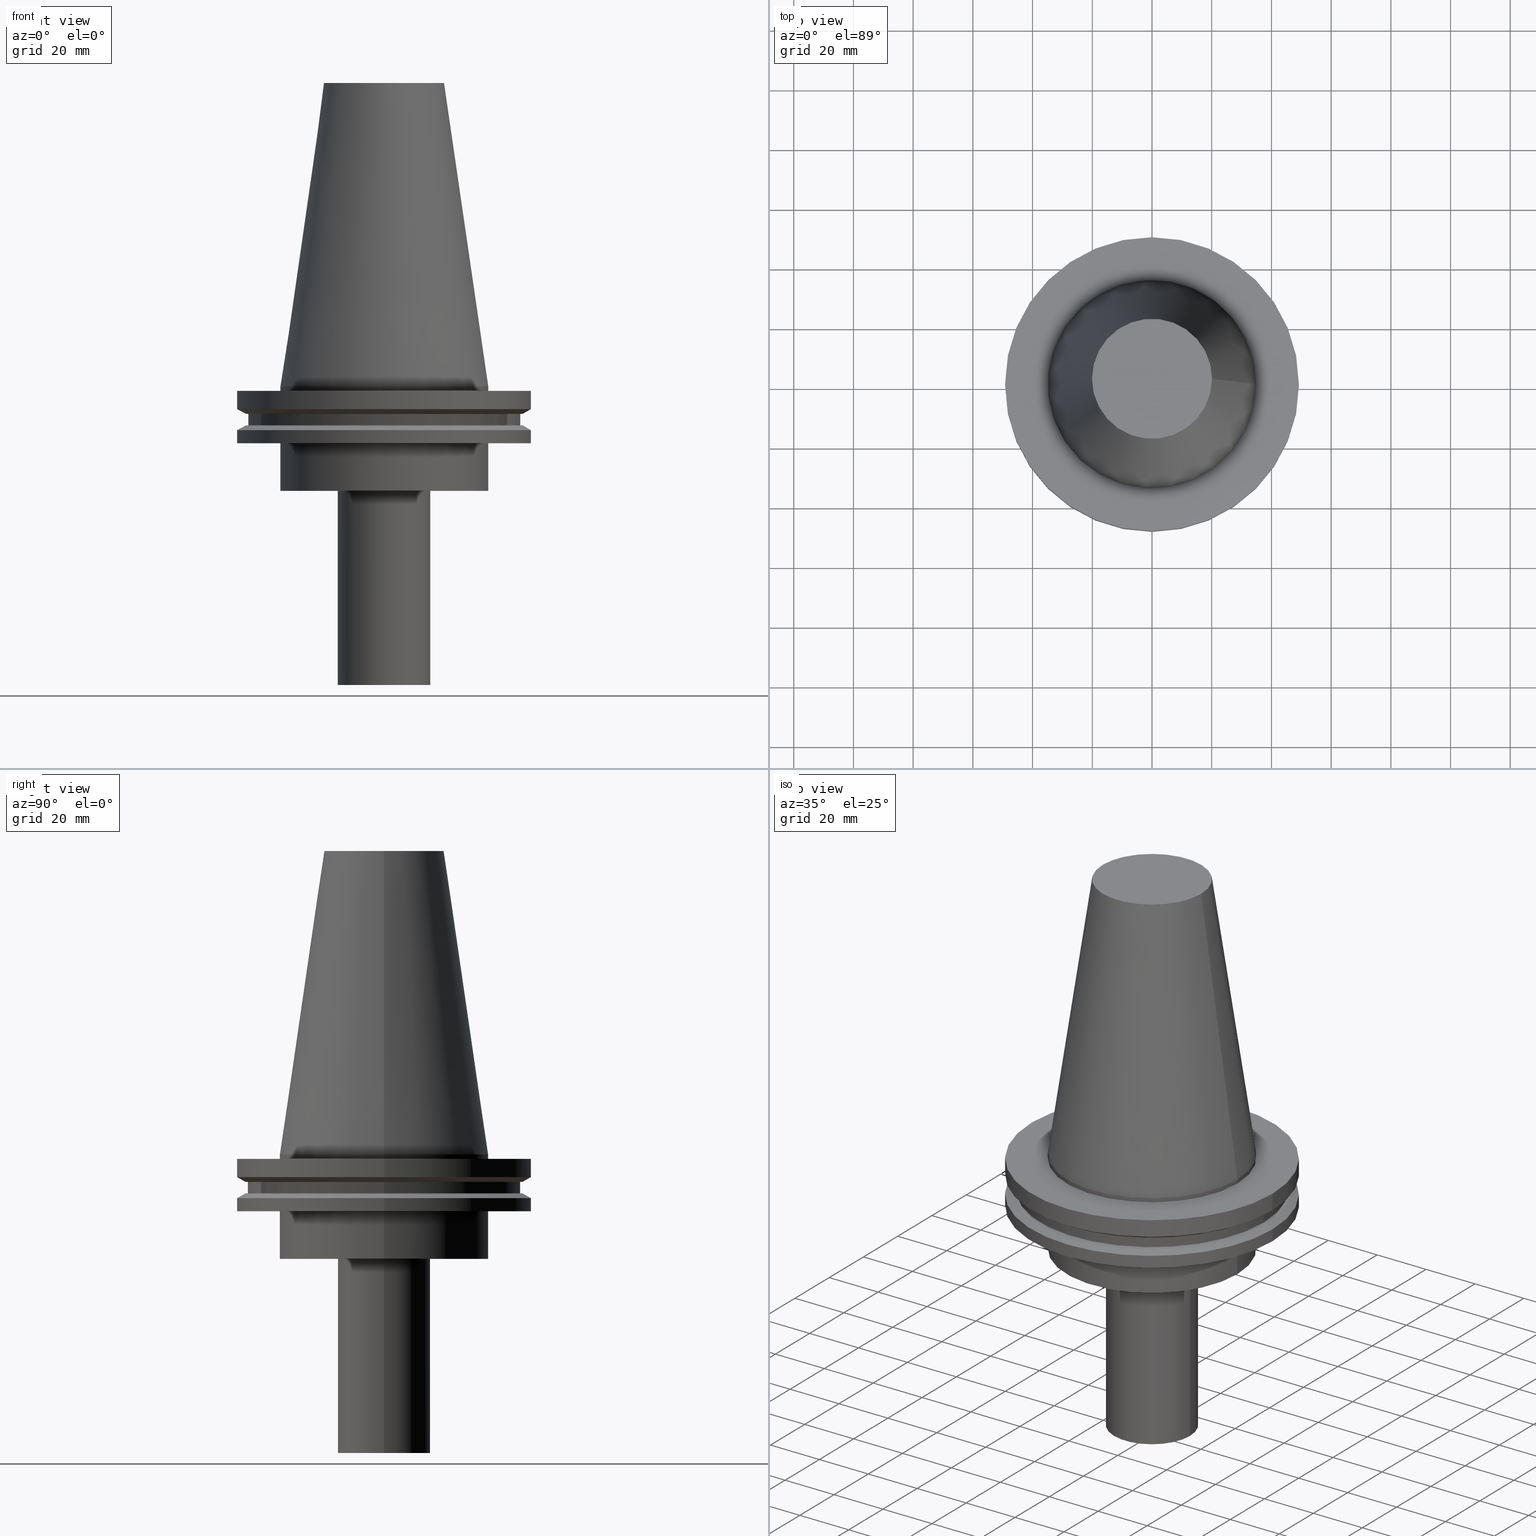
[diagram: canonical four-view strip — front | top / right | iso, engineering-drawing reading convention]
A machine part, canonical four-view strip (front | top / right | iso — engineering-drawing reading convention). The complete STEP part file that produces these views, byte-faithful:
ISO-10303-21;
HEADER;
FILE_DESCRIPTION (( 'STEP AP203' ),
    '1' );
FILE_NAME ('11.326.632.stp',
    '2022-03-09T14:50:20',
    ( '' ),
    ( '' ),
    'SwSTEP 2.0',
    'SolidWorks 2021',
    '' );
FILE_SCHEMA (( 'CONFIG_CONTROL_DESIGN' ));
ENDSEC;

DATA;
#1 = CIRCLE ( 'NONE', #92, 49.21500000000000341 ) ;
#2 = AXIS2_PLACEMENT_3D ( 'NONE', #144, #334, #86 ) ;
#3 = CARTESIAN_POINT ( 'NONE',  ( 0.000000000000000000, 0.000000000000000000, -14.65761014474876944 ) ) ;
#4 = SECURITY_CLASSIFICATION_LEVEL ( 'unclassified' ) ;
#5 = DIRECTION ( 'NONE',  ( 1.000000000000000000, 0.000000000000000000, 0.000000000000000000 ) ) ;
#6 = APPROVAL ( #215, 'UNSPECIFIED' ) ;
#7 = ORIENTED_EDGE ( 'NONE', *, *, #99, .F. ) ;
#8 = PERSON_AND_ORGANIZATION_ROLE ( 'design_owner' ) ;
#9 = PERSON ( 'UNSPECIFIED', 'UNSPECIFIED', 'UNSPECIFIED', ('UNSPECIFIED'), ('UNSPECIFIED'), ('UNSPECIFIED') ) ;
#10 = DIRECTION ( 'NONE',  ( -0.000000000000000000, -0.000000000000000000, 1.000000000000000000 ) ) ;
#11 = APPROVAL_PERSON_ORGANIZATION ( #106, #6, #16 ) ;
#12 = CALENDAR_DATE ( 2022, 9, 3 ) ;
#13 = DIRECTION ( 'NONE',  ( -0.000000000000000000, -0.000000000000000000, 1.000000000000000000 ) ) ;
#14 = DATE_AND_TIME ( #161, #386 ) ;
#15 = CARTESIAN_POINT ( 'NONE',  ( 49.21500000000000341, 0.000000000000000000, -7.602389855251287187 ) ) ;
#16 = APPROVAL_ROLE ( '' ) ;
#17 = DIRECTION ( 'NONE',  ( 1.000000000000000000, 0.000000000000000000, 0.000000000000000000 ) ) ;
#18 = ADVANCED_FACE ( 'NONE', ( #124 ), #213, .F. ) ;
#19 = CARTESIAN_POINT ( 'NONE',  ( 0.000000000000000000, 0.000000000000000000, -7.602389855251287187 ) ) ;
#20 = CIRCLE ( 'NONE', #385, 34.92499999999999716 ) ;
#21 = AXIS2_PLACEMENT_3D ( 'NONE', #331, #60, #153 ) ;
#22 = DIRECTION ( 'NONE',  ( 1.000000000000000000, 0.000000000000000000, 0.000000000000000000 ) ) ;
#23 = EDGE_LOOP ( 'NONE', ( #333 ) ) ;
#24 = AXIS2_PLACEMENT_3D ( 'NONE', #3, #40, #93 ) ;
#25 = CARTESIAN_POINT ( 'NONE',  ( 0.000000000000000000, 0.000000000000000000, 101.5999999999999943 ) ) ;
#26 = ADVANCED_FACE ( 'NONE', ( #243, #186 ), #308, .F. ) ;
#27 = EDGE_LOOP ( 'NONE', ( #335 ) ) ;
#28 = DIRECTION ( 'NONE',  ( -0.000000000000000000, -0.000000000000000000, 1.000000000000000000 ) ) ;
#29 = ORIENTED_EDGE ( 'NONE', *, *, #197, .F. ) ;
#30 = AXIS2_PLACEMENT_3D ( 'NONE', #38, #156, #217 ) ;
#31 = DIRECTION ( 'NONE',  ( 1.000000000000000000, 0.000000000000000000, 0.000000000000000000 ) ) ;
#32 = CC_DESIGN_SECURITY_CLASSIFICATION ( #181, ( #269 ) ) ;
#33 = EDGE_LOOP ( 'NONE', ( #272 ) ) ;
#34 = CYLINDRICAL_SURFACE ( 'NONE', #236, 49.21499999999998920 ) ;
#35 = ORIENTED_EDGE ( 'NONE', *, *, #214, .F. ) ;
#36 = PERSON_AND_ORGANIZATION ( #9, #158 ) ;
#37 = CARTESIAN_POINT ( 'NONE',  ( 0.000000000000000000, 0.000000000000000000, -14.65761014474876944 ) ) ;
#38 = CARTESIAN_POINT ( 'NONE',  ( 0.000000000000000000, 45.64500000000000313, -13.05499999999999794 ) ) ;
#39 = PERSON_AND_ORGANIZATION_ROLE ( 'creator' ) ;
#40 = DIRECTION ( 'NONE',  ( -0.000000000000000000, -0.000000000000000000, 1.000000000000000000 ) ) ;
#41 = CIRCLE ( 'NONE', #238, 34.92499999999999716 ) ;
#42 = EDGE_LOOP ( 'NONE', ( #177 ) ) ;
#43 = APPROVAL_PERSON_ORGANIZATION ( #187, #113, #377 ) ;
#44 = VERTEX_POINT ( 'NONE', #133 ) ;
#45 = DATE_TIME_ROLE ( 'classification_date' ) ;
#46 = EDGE_LOOP ( 'NONE', ( #147 ) ) ;
#47 = VERTEX_POINT ( 'NONE', #76 ) ;
#48 = DIRECTION ( 'NONE',  ( -0.000000000000000000, -0.000000000000000000, 1.000000000000000000 ) ) ;
#49 = ADVANCED_FACE ( 'NONE', ( #276 ), #129, .F. ) ;
#50 = DIRECTION ( 'NONE',  ( -1.000000000000000000, 0.000000000000000000, -0.000000000000000000 ) ) ;
#51 = DIRECTION ( 'NONE',  ( 1.000000000000000000, 0.000000000000000000, 0.000000000000000000 ) ) ;
#52 = MANIFOLD_SOLID_BREP ( 'CKB', #358 ) ;
#53 = AXIS2_PLACEMENT_3D ( 'NONE', #216, #252, #344 ) ;
#54 = ADVANCED_FACE ( 'NONE', ( #189, #230 ), #322, .F. ) ;
#55 = CYLINDRICAL_SURFACE ( 'NONE', #370, 34.92499999999999005 ) ;
#56 = EDGE_LOOP ( 'NONE', ( #279 ) ) ;
#57 = EDGE_LOOP ( 'NONE', ( #35 ) ) ;
#58 = EDGE_CURVE ( 'NONE', #340, #340, #1, .T. ) ;
#59 = ORIENTED_EDGE ( 'NONE', *, *, #58, .T. ) ;
#60 = DIRECTION ( 'NONE',  ( -0.000000000000000000, -0.000000000000000000, 1.000000000000000000 ) ) ;
#61 = ORIENTED_EDGE ( 'NONE', *, *, #214, .T. ) ;
#62 = ADVANCED_FACE ( 'NONE', ( #167, #323 ), #289, .F. ) ;
#63 = FACE_OUTER_BOUND ( 'NONE', #235, .T. ) ;
#64 =( GEOMETRIC_REPRESENTATION_CONTEXT ( 3 ) GLOBAL_UNCERTAINTY_ASSIGNED_CONTEXT ( ( #149 ) ) GLOBAL_UNIT_ASSIGNED_CONTEXT ( ( #320, #318, #199 ) ) REPRESENTATION_CONTEXT ( 'NONE', 'WORKASPACE' ) );
#65 = PRODUCT ( '11.326.632', '11.326.632', '', ( #372 ) ) ;
#66 = DATE_AND_TIME ( #152, #219 ) ;
#67 = CARTESIAN_POINT ( 'NONE',  ( 20.10819343178871321, 0.000000000000000000, 101.5999999999999801 ) ) ;
#68 = CARTESIAN_POINT ( 'NONE',  ( 0.000000000000000000, 15.50000000000000000, -100.0000000000000000 ) ) ;
#69 = APPROVAL_STATUS ( 'not_yet_approved' ) ;
#70 = CARTESIAN_POINT ( 'NONE',  ( 0.000000000000000000, 0.000000000000000000, -9.204999999999991189 ) ) ;
#71 = DIRECTION ( 'NONE',  ( -1.000000000000000000, 0.000000000000000000, -0.000000000000000000 ) ) ;
#72 = PERSON_AND_ORGANIZATION ( #9, #158 ) ;
#73 = DIRECTION ( 'NONE',  ( 1.000000000000000000, 0.000000000000000000, 0.000000000000000000 ) ) ;
#74 = CIRCLE ( 'NONE', #293, 34.92499999999999005 ) ;
#75 = DIRECTION ( 'NONE',  ( 1.000000000000000000, 0.000000000000000000, 0.000000000000000000 ) ) ;
#76 = CARTESIAN_POINT ( 'NONE',  ( 34.92499999999999005, 0.000000000000000000, 0.000000000000000000 ) ) ;
#77 = DATE_AND_TIME ( #12, #326 ) ;
#78 = CARTESIAN_POINT ( 'NONE',  ( 49.21499999999998920, 0.000000000000000000, -14.65761014474876944 ) ) ;
#79 = EDGE_CURVE ( 'NONE', #313, #313, #180, .T. ) ;
#80 = DIRECTION ( 'NONE',  ( 1.000000000000000000, 0.000000000000000000, 0.000000000000000000 ) ) ;
#81 = EDGE_CURVE ( 'NONE', #44, #44, #379, .T. ) ;
#82 = AXIS2_PLACEMENT_3D ( 'NONE', #137, #112, #80 ) ;
#83 = ORIENTED_EDGE ( 'NONE', *, *, #355, .F. ) ;
#84 = EDGE_LOOP ( 'NONE', ( #83 ) ) ;
#85 = EDGE_CURVE ( 'NONE', #378, #378, #366, .T. ) ;
#86 = DIRECTION ( 'NONE',  ( -1.000000000000000000, 0.000000000000000000, 0.000000000000000000 ) ) ;
#87 = AXIS2_PLACEMENT_3D ( 'NONE', #159, #241, #100 ) ;
#88 = ORIENTED_EDGE ( 'NONE', *, *, #294, .F. ) ;
#89 = CARTESIAN_POINT ( 'NONE',  ( 0.000000000000000000, 46.43919780457007818, -9.204999999999998295 ) ) ;
#90 = EDGE_LOOP ( 'NONE', ( #61 ) ) ;
#91 = CARTESIAN_POINT ( 'NONE',  ( 0.000000000000000000, 0.000000000000000000, 0.000000000000000000 ) ) ;
#92 = AXIS2_PLACEMENT_3D ( 'NONE', #19, #287, #356 ) ;
#93 = DIRECTION ( 'NONE',  ( 1.000000000000000000, 0.000000000000000000, 0.000000000000000000 ) ) ;
#94 = EDGE_LOOP ( 'NONE', ( #263 ) ) ;
#95 = COORDINATED_UNIVERSAL_TIME_OFFSET ( 6, 0, .BEHIND. ) ;
#96 = DIRECTION ( 'NONE',  ( 1.000000000000000000, 0.000000000000000000, 0.000000000000000000 ) ) ;
#97 = DIRECTION ( 'NONE',  ( 1.000000000000000000, 0.000000000000000000, 0.000000000000000000 ) ) ;
#98 = APPROVAL_DATE_TIME ( #66, #324 ) ;
#99 = EDGE_CURVE ( 'NONE', #102, #102, #103, .T. ) ;
#100 = DIRECTION ( 'NONE',  ( 1.000000000000000000, 0.000000000000000000, 0.000000000000000000 ) ) ;
#101 = CALENDAR_DATE ( 2022, 9, 3 ) ;
#102 = VERTEX_POINT ( 'NONE', #220 ) ;
#103 = CIRCLE ( 'NONE', #82, 45.64500000000000313 ) ;
#104 = CC_DESIGN_APPROVAL ( #113, ( #269 ) ) ;
#105 = AXIS2_PLACEMENT_3D ( 'NONE', #170, #140, #352 ) ;
#106 = PERSON_AND_ORGANIZATION ( #9, #158 ) ;
#107 = CYLINDRICAL_SURFACE ( 'NONE', #105, 15.50000000000000000 ) ;
#108 = ADVANCED_FACE ( 'NONE', ( #255, #142 ), #107, .T. ) ;
#109 = CARTESIAN_POINT ( 'NONE',  ( 15.50000000000000000, 0.000000000000000000, -35.00000000000000000 ) ) ;
#110 = CARTESIAN_POINT ( 'NONE',  ( 0.000000000000000000, 34.92499999999999716, -35.00000000000000000 ) ) ;
#111 = DIRECTION ( 'NONE',  ( 1.000000000000000000, 0.000000000000000000, 0.000000000000000000 ) ) ;
#112 = DIRECTION ( 'NONE',  ( -0.000000000000000000, -0.000000000000000000, 1.000000000000000000 ) ) ;
#113 = APPROVAL ( #69, 'UNSPECIFIED' ) ;
#114 = FACE_BOUND ( 'NONE', #266, .T. ) ;
#115 = AXIS2_PLACEMENT_3D ( 'NONE', #110, #146, #363 ) ;
#116 = ADVANCED_FACE ( 'NONE', ( #292, #319 ), #225, .T. ) ;
#117 = EDGE_LOOP ( 'NONE', ( #314 ) ) ;
#118 = EDGE_LOOP ( 'NONE', ( #145 ) ) ;
#119 = AXIS2_PLACEMENT_3D ( 'NONE', #70, #188, #31 ) ;
#120 = FACE_OUTER_BOUND ( 'NONE', #393, .T. ) ;
#121 = AXIS2_PLACEMENT_3D ( 'NONE', #203, #229, #51 ) ;
#122 = EDGE_LOOP ( 'NONE', ( #134 ) ) ;
#123 = DIRECTION ( 'NONE',  ( -0.000000000000000000, -0.000000000000000000, 1.000000000000000000 ) ) ;
#124 = FACE_OUTER_BOUND ( 'NONE', #360, .T. ) ;
#125 = FACE_BOUND ( 'NONE', #57, .T. ) ;
#126 = APPROVAL_DATE_TIME ( #375, #6 ) ;
#127 = APPROVAL_PERSON_ORGANIZATION ( #190, #324, #283 ) ;
#128 = CARTESIAN_POINT ( 'NONE',  ( 46.43919780457007818, 0.000000000000000000, -13.05499999999999794 ) ) ;
#129 = PLANE ( 'NONE',  #223 ) ;
#130 = CARTESIAN_POINT ( 'NONE',  ( 0.000000000000000000, 0.000000000000000000, 0.000000000000000000 ) ) ;
#131 = FACE_OUTER_BOUND ( 'NONE', #151, .T. ) ;
#132 = PERSON_AND_ORGANIZATION_ROLE ( 'creator' ) ;
#133 = CARTESIAN_POINT ( 'NONE',  ( 49.21499999999999631, 0.000000000000000000, -1.499999999999987566 ) ) ;
#134 = ORIENTED_EDGE ( 'NONE', *, *, #85, .F. ) ;
#135 = ADVANCED_FACE ( 'NONE', ( #262, #388 ), #325, .T. ) ;
#136 = CARTESIAN_POINT ( 'NONE',  ( 34.92499999999999005, 0.000000000000000000, -1.499999999999987566 ) ) ;
#137 = CARTESIAN_POINT ( 'NONE',  ( 0.000000000000000000, 0.000000000000000000, -13.05499999999999794 ) ) ;
#138 = VERTEX_POINT ( 'NONE', #316 ) ;
#139 = FACE_OUTER_BOUND ( 'NONE', #296, .T. ) ;
#140 = DIRECTION ( 'NONE',  ( -0.000000000000000000, -0.000000000000000000, 1.000000000000000000 ) ) ;
#141 = CC_DESIGN_PERSON_AND_ORGANIZATION_ASSIGNMENT ( #183, #309, ( #181 ) ) ;
#142 = FACE_OUTER_BOUND ( 'NONE', #56, .T. ) ;
#143 = ADVANCED_FACE ( 'NONE', ( #114, #139 ), #257, .F. ) ;
#144 = CARTESIAN_POINT ( 'NONE',  ( 0.000000000000000000, 0.000000000000000000, 0.000000000000000000 ) ) ;
#145 = ORIENTED_EDGE ( 'NONE', *, *, #79, .T. ) ;
#146 = DIRECTION ( 'NONE',  ( 0.000000000000000000, -0.000000000000000000, 1.000000000000000000 ) ) ;
#147 = ORIENTED_EDGE ( 'NONE', *, *, #389, .F. ) ;
#148 = ORIENTED_EDGE ( 'NONE', *, *, #280, .T. ) ;
#149 = UNCERTAINTY_MEASURE_WITH_UNIT (LENGTH_MEASURE( 1.000000000000000082E-05 ), #320, 'distance_accuracy_value', 'NONE');
#150 = DIRECTION ( 'NONE',  ( 1.000000000000000000, 0.000000000000000000, 0.000000000000000000 ) ) ;
#151 = EDGE_LOOP ( 'NONE', ( #211 ) ) ;
#152 = CALENDAR_DATE ( 2022, 9, 3 ) ;
#153 = DIRECTION ( 'NONE',  ( 1.000000000000000000, 0.000000000000000000, 0.000000000000000000 ) ) ;
#154 = SHAPE_DEFINITION_REPRESENTATION ( #307, #239 ) ;
#155 = CARTESIAN_POINT ( 'NONE',  ( 34.92499999999999716, 0.000000000000000000, -19.04999999999999716 ) ) ;
#156 = DIRECTION ( 'NONE',  ( 0.000000000000000000, 0.000000000000000000, -1.000000000000000000 ) ) ;
#157 = PERSON_AND_ORGANIZATION ( #9, #158 ) ;
#158 = ORGANIZATION ( 'UNSPECIFIED', 'UNSPECIFIED', '' ) ;
#159 = CARTESIAN_POINT ( 'NONE',  ( 0.000000000000000000, 0.000000000000000000, -100.0000000000000000 ) ) ;
#160 = DIRECTION ( 'NONE',  ( 1.000000000000000000, 0.000000000000000000, 0.000000000000000000 ) ) ;
#161 = CALENDAR_DATE ( 2022, 9, 3 ) ;
#162 = VERTEX_POINT ( 'NONE', #109 ) ;
#163 = CC_DESIGN_DATE_AND_TIME_ASSIGNMENT ( #77, #45, ( #181 ) ) ;
#164 = CARTESIAN_POINT ( 'NONE',  ( 46.43919780457007818, 0.000000000000000000, -9.204999999999991189 ) ) ;
#165 = DIRECTION ( 'NONE',  ( 1.000000000000000000, 0.000000000000000000, 0.000000000000000000 ) ) ;
#166 = CARTESIAN_POINT ( 'NONE',  ( 34.92499999999999716, 0.000000000000000000, -35.00000000000000000 ) ) ;
#167 = FACE_OUTER_BOUND ( 'NONE', #122, .T. ) ;
#168 = DIRECTION ( 'NONE',  ( -0.000000000000000000, -0.000000000000000000, 1.000000000000000000 ) ) ;
#169 = ADVANCED_FACE ( 'NONE', ( #264, #362 ), #392, .F. ) ;
#170 = CARTESIAN_POINT ( 'NONE',  ( 0.000000000000000000, 0.000000000000000000, 0.000000000000000000 ) ) ;
#171 = CIRCLE ( 'NONE', #24, 49.21499999999998920 ) ;
#172 = CC_DESIGN_APPROVAL ( #6, ( #221 ) ) ;
#173 = AXIS2_PLACEMENT_3D ( 'NONE', #259, #383, #17 ) ;
#174 = DIRECTION ( 'NONE',  ( -0.000000000000000000, -0.000000000000000000, 1.000000000000000000 ) ) ;
#175 = ADVANCED_FACE ( 'NONE', ( #327, #267 ), #55, .T. ) ;
#176 = AXIS2_PLACEMENT_3D ( 'NONE', #369, #346, #73 ) ;
#177 = ORIENTED_EDGE ( 'NONE', *, *, #58, .F. ) ;
#178 = DIRECTION ( 'NONE',  ( -0.000000000000000000, -0.000000000000000000, 1.000000000000000000 ) ) ;
#179 = ORIENTED_EDGE ( 'NONE', *, *, #355, .T. ) ;
#180 = CIRCLE ( 'NONE', #121, 20.10819343178871321 ) ;
#181 = SECURITY_CLASSIFICATION ( '', '', #4 ) ;
#182 = DIRECTION ( 'NONE',  ( -0.000000000000000000, -0.000000000000000000, 1.000000000000000000 ) ) ;
#183 = PERSON_AND_ORGANIZATION ( #9, #158 ) ;
#184 = PRODUCT_RELATED_PRODUCT_CATEGORY ( 'detail', '', ( #65 ) ) ;
#185 = CARTESIAN_POINT ( 'NONE',  ( 49.21499999999998920, 0.000000000000000000, -19.04999999999999716 ) ) ;
#186 = FACE_OUTER_BOUND ( 'NONE', #90, .T. ) ;
#187 = PERSON_AND_ORGANIZATION ( #9, #158 ) ;
#188 = DIRECTION ( 'NONE',  ( -0.000000000000000000, -0.000000000000000000, 1.000000000000000000 ) ) ;
#189 = FACE_BOUND ( 'NONE', #46, .T. ) ;
#190 = PERSON_AND_ORGANIZATION ( #9, #158 ) ;
#191 = AXIS2_PLACEMENT_3D ( 'NONE', #321, #202, #50 ) ;
#192 = AXIS2_PLACEMENT_3D ( 'NONE', #130, #253, #75 ) ;
#193 = FACE_OUTER_BOUND ( 'NONE', #391, .T. ) ;
#194 = CONICAL_SURFACE ( 'NONE', #2, 34.92499999999999005, 0.1448138465474119452 ) ;
#195 = COORDINATED_UNIVERSAL_TIME_OFFSET ( 6, 0, .BEHIND. ) ;
#196 = CARTESIAN_POINT ( 'NONE',  ( 45.64500000000000313, 0.000000000000000000, -9.204999999999991189 ) ) ;
#197 = EDGE_CURVE ( 'NONE', #306, #306, #20, .T. ) ;
#198 = COORDINATED_UNIVERSAL_TIME_OFFSET ( 6, 0, .BEHIND. ) ;
#199 =( NAMED_UNIT ( * ) SI_UNIT ( $, .STERADIAN. ) SOLID_ANGLE_UNIT ( ) );
#200 = CIRCLE ( 'NONE', #21, 46.43919780457007818 ) ;
#201 = ADVANCED_FACE ( 'NONE', ( #231, #120 ), #194, .T. ) ;
#202 = DIRECTION ( 'NONE',  ( 0.000000000000000000, 0.000000000000000000, -1.000000000000000000 ) ) ;
#203 = CARTESIAN_POINT ( 'NONE',  ( 0.000000000000000000, 0.000000000000000000, 101.5999999999999801 ) ) ;
#204 = AXIS2_PLACEMENT_3D ( 'NONE', #68, #317, #97 ) ;
#205 = EDGE_LOOP ( 'NONE', ( #233 ) ) ;
#206 = DIRECTION ( 'NONE',  ( 1.000000000000000000, 0.000000000000000000, 0.000000000000000000 ) ) ;
#207 = EDGE_LOOP ( 'NONE', ( #88 ) ) ;
#208 = CC_DESIGN_PERSON_AND_ORGANIZATION_ASSIGNMENT ( #157, #39, ( #269 ) ) ;
#209 = DIRECTION ( 'NONE',  ( 1.000000000000000000, 0.000000000000000000, 0.000000000000000000 ) ) ;
#210 = EDGE_LOOP ( 'NONE', ( #240 ) ) ;
#211 = ORIENTED_EDGE ( 'NONE', *, *, #85, .T. ) ;
#212 = FACE_OUTER_BOUND ( 'NONE', #268, .T. ) ;
#213 = PLANE ( 'NONE',  #204 ) ;
#214 = EDGE_CURVE ( 'NONE', #275, #275, #200, .T. ) ;
#215 = APPROVAL_STATUS ( 'not_yet_approved' ) ;
#216 = CARTESIAN_POINT ( 'NONE',  ( 0.000000000000000000, 0.000000000000000000, -35.00000000000000000 ) ) ;
#217 = DIRECTION ( 'NONE',  ( -1.000000000000000000, 0.000000000000000000, -0.000000000000000000 ) ) ;
#218 = CARTESIAN_POINT ( 'NONE',  ( 0.000000000000000000, 0.000000000000000000, -35.00000000000000000 ) ) ;
#219 = LOCAL_TIME ( 8, 50, 20.00000000000000000, #248 ) ;
#220 = CARTESIAN_POINT ( 'NONE',  ( 45.64500000000000313, 0.000000000000000000, -13.05499999999999794 ) ) ;
#221 = PRODUCT_DEFINITION ( 'UNKNOWN', '', #269, #273 ) ;
#222 = EDGE_LOOP ( 'NONE', ( #359 ) ) ;
#223 = AXIS2_PLACEMENT_3D ( 'NONE', #374, #345, #71 ) ;
#224 = PERSON_AND_ORGANIZATION_ROLE ( 'design_supplier' ) ;
#225 = CYLINDRICAL_SURFACE ( 'NONE', #260, 45.64500000000000313 ) ;
#226 = VERTEX_POINT ( 'NONE', #164 ) ;
#227 = CARTESIAN_POINT ( 'NONE',  ( 0.000000000000000000, 0.000000000000000000, -9.204999999999991189 ) ) ;
#228 = CIRCLE ( 'NONE', #286, 46.43919780457007818 ) ;
#229 = DIRECTION ( 'NONE',  ( -0.000000000000000000, -0.000000000000000000, 1.000000000000000000 ) ) ;
#230 = FACE_OUTER_BOUND ( 'NONE', #299, .T. ) ;
#231 = FACE_BOUND ( 'NONE', #27, .T. ) ;
#232 = AXIS2_PLACEMENT_3D ( 'NONE', #381, #174, #111 ) ;
#233 = ORIENTED_EDGE ( 'NONE', *, *, #389, .T. ) ;
#234 = CIRCLE ( 'NONE', #87, 15.50000000000000000 ) ;
#235 = EDGE_LOOP ( 'NONE', ( #29 ) ) ;
#236 = AXIS2_PLACEMENT_3D ( 'NONE', #373, #10, #160 ) ;
#237 = LOCAL_TIME ( 8, 50, 20.00000000000000000, #195 ) ;
#238 = AXIS2_PLACEMENT_3D ( 'NONE', #218, #249, #96 ) ;
#239 = ADVANCED_BREP_SHAPE_REPRESENTATION ( '11.326.632', ( #52, #192 ), #64 ) ;
#240 = ORIENTED_EDGE ( 'NONE', *, *, #285, .F. ) ;
#241 = DIRECTION ( 'NONE',  ( -0.000000000000000000, -0.000000000000000000, 1.000000000000000000 ) ) ;
#242 = ADVANCED_FACE ( 'NONE', ( #349, #131 ), #34, .T. ) ;
#243 = FACE_BOUND ( 'NONE', #341, .T. ) ;
#244 = DIRECTION ( 'NONE',  ( 1.000000000000000000, 0.000000000000000000, 0.000000000000000000 ) ) ;
#245 = CIRCLE ( 'NONE', #303, 34.92499999999999005 ) ;
#246 = PERSON_AND_ORGANIZATION ( #9, #158 ) ;
#247 = DIRECTION ( 'NONE',  ( -1.000000000000000000, 0.000000000000000000, 0.000000000000000000 ) ) ;
#248 = COORDINATED_UNIVERSAL_TIME_OFFSET ( 6, 0, .BEHIND. ) ;
#249 = DIRECTION ( 'NONE',  ( -0.000000000000000000, -0.000000000000000000, 1.000000000000000000 ) ) ;
#250 = CALENDAR_DATE ( 2022, 9, 3 ) ;
#251 = CC_DESIGN_PERSON_AND_ORGANIZATION_ASSIGNMENT ( #36, #132, ( #221 ) ) ;
#252 = DIRECTION ( 'NONE',  ( -0.000000000000000000, -0.000000000000000000, 1.000000000000000000 ) ) ;
#253 = DIRECTION ( 'NONE',  ( 0.000000000000000000, 0.000000000000000000, 1.000000000000000000 ) ) ;
#254 = VERTEX_POINT ( 'NONE', #196 ) ;
#255 = FACE_OUTER_BOUND ( 'NONE', #210, .T. ) ;
#256 = APPLICATION_PROTOCOL_DEFINITION ( 'international standard', 'config_control_design', 1994, #361 ) ;
#257 = PLANE ( 'NONE',  #115 ) ;
#258 = CC_DESIGN_PERSON_AND_ORGANIZATION_ASSIGNMENT ( #246, #224, ( #269 ) ) ;
#259 = CARTESIAN_POINT ( 'NONE',  ( 0.000000000000000000, 49.21499999999998920, -19.04999999999999716 ) ) ;
#260 = AXIS2_PLACEMENT_3D ( 'NONE', #357, #354, #261 ) ;
#261 = DIRECTION ( 'NONE',  ( 1.000000000000000000, 0.000000000000000000, 0.000000000000000000 ) ) ;
#262 = FACE_OUTER_BOUND ( 'NONE', #42, .T. ) ;
#263 = ORIENTED_EDGE ( 'NONE', *, *, #280, .F. ) ;
#264 = FACE_OUTER_BOUND ( 'NONE', #84, .T. ) ;
#265 = EDGE_CURVE ( 'NONE', #288, #288, #41, .T. ) ;
#266 = EDGE_LOOP ( 'NONE', ( #337 ) ) ;
#267 = FACE_OUTER_BOUND ( 'NONE', #205, .T. ) ;
#268 = EDGE_LOOP ( 'NONE', ( #367 ) ) ;
#269 = PRODUCT_DEFINITION_FORMATION_WITH_SPECIFIED_SOURCE ( 'ANY', '', #65, .NOT_KNOWN. ) ;
#270 = AXIS2_PLACEMENT_3D ( 'NONE', #290, #168, #387 ) ;
#271 = CYLINDRICAL_SURFACE ( 'NONE', #347, 34.92499999999999716 ) ;
#272 = ORIENTED_EDGE ( 'NONE', *, *, #294, .T. ) ;
#273 = DESIGN_CONTEXT ( 'detailed design', #312, 'design' ) ;
#274 = CARTESIAN_POINT ( 'NONE',  ( 0.000000000000000000, 0.000000000000000000, 101.5999999999999943 ) ) ;
#275 = VERTEX_POINT ( 'NONE', #128 ) ;
#276 = FACE_OUTER_BOUND ( 'NONE', #118, .T. ) ;
#277 = APPROVAL_STATUS ( 'not_yet_approved' ) ;
#278 = CARTESIAN_POINT ( 'NONE',  ( 0.000000000000000000, 0.000000000000000000, -1.499999999999987566 ) ) ;
#279 = ORIENTED_EDGE ( 'NONE', *, *, #371, .T. ) ;
#280 = EDGE_CURVE ( 'NONE', #47, #47, #74, .T. ) ;
#281 = FACE_OUTER_BOUND ( 'NONE', #282, .T. ) ;
#282 = EDGE_LOOP ( 'NONE', ( #59 ) ) ;
#283 = APPROVAL_ROLE ( '' ) ;
#284 = AXIS2_PLACEMENT_3D ( 'NONE', #227, #48, #165 ) ;
#285 = EDGE_CURVE ( 'NONE', #162, #162, #348, .T. ) ;
#286 = AXIS2_PLACEMENT_3D ( 'NONE', #301, #123, #338 ) ;
#287 = DIRECTION ( 'NONE',  ( -0.000000000000000000, -0.000000000000000000, 1.000000000000000000 ) ) ;
#288 = VERTEX_POINT ( 'NONE', #166 ) ;
#289 = PLANE ( 'NONE',  #173 ) ;
#290 = CARTESIAN_POINT ( 'NONE',  ( 0.000000000000000000, 0.000000000000000000, -1.499999999999987566 ) ) ;
#291 = CIRCLE ( 'NONE', #119, 45.64500000000000313 ) ;
#292 = FACE_OUTER_BOUND ( 'NONE', #207, .T. ) ;
#293 = AXIS2_PLACEMENT_3D ( 'NONE', #91, #178, #150 ) ;
#294 = EDGE_CURVE ( 'NONE', #254, #254, #291, .T. ) ;
#295 = DIRECTION ( 'NONE',  ( 0.000000000000000000, -0.000000000000000000, 1.000000000000000000 ) ) ;
#296 = EDGE_LOOP ( 'NONE', ( #302 ) ) ;
#297 = LOCAL_TIME ( 8, 50, 20.00000000000000000, #95 ) ;
#298 = ORIENTED_EDGE ( 'NONE', *, *, #371, .F. ) ;
#299 = EDGE_LOOP ( 'NONE', ( #328 ) ) ;
#300 = ORIENTED_EDGE ( 'NONE', *, *, #197, .T. ) ;
#301 = CARTESIAN_POINT ( 'NONE',  ( 0.000000000000000000, 0.000000000000000000, -9.204999999999991189 ) ) ;
#302 = ORIENTED_EDGE ( 'NONE', *, *, #265, .F. ) ;
#303 = AXIS2_PLACEMENT_3D ( 'NONE', #278, #13, #244 ) ;
#304 = CC_DESIGN_PERSON_AND_ORGANIZATION_ASSIGNMENT ( #72, #8, ( #65 ) ) ;
#305 = APPLICATION_PROTOCOL_DEFINITION ( 'international standard', 'config_control_design', 1994, #312 ) ;
#306 = VERTEX_POINT ( 'NONE', #155 ) ;
#307 = PRODUCT_DEFINITION_SHAPE ( 'NONE', 'NONE',  #221 ) ;
#308 = PLANE ( 'NONE',  #30 ) ;
#309 = PERSON_AND_ORGANIZATION_ROLE ( 'classification_officer' ) ;
#310 = FACE_OUTER_BOUND ( 'NONE', #117, .T. ) ;
#311 = ADVANCED_FACE ( 'NONE', ( #63, #310 ), #271, .T. ) ;
#312 = APPLICATION_CONTEXT ( 'configuration controlled 3d designs of mechanical parts and assemblies' ) ;
#313 = VERTEX_POINT ( 'NONE', #67 ) ;
#314 = ORIENTED_EDGE ( 'NONE', *, *, #265, .T. ) ;
#315 = APPROVAL_DATE_TIME ( #14, #113 ) ;
#316 = CARTESIAN_POINT ( 'NONE',  ( 15.50000000000000000, 0.000000000000000000, -100.0000000000000000 ) ) ;
#317 = DIRECTION ( 'NONE',  ( 0.000000000000000000, -0.000000000000000000, 1.000000000000000000 ) ) ;
#318 =( NAMED_UNIT ( * ) PLANE_ANGLE_UNIT ( ) SI_UNIT ( $, .RADIAN. ) );
#319 = FACE_OUTER_BOUND ( 'NONE', #222, .T. ) ;
#320 =( LENGTH_UNIT ( ) NAMED_UNIT ( * ) SI_UNIT ( .MILLI., .METRE. ) );
#321 = CARTESIAN_POINT ( 'NONE',  ( 0.000000000000000000, 49.21499999999999631, -1.499999999999992895 ) ) ;
#322 = PLANE ( 'NONE',  #191 ) ;
#323 = FACE_BOUND ( 'NONE', #330, .T. ) ;
#324 = APPROVAL ( #277, 'UNSPECIFIED' ) ;
#325 = CONICAL_SURFACE ( 'NONE', #284, 46.43919780457007818, 1.047197551196575205 ) ;
#326 = LOCAL_TIME ( 8, 50, 20.00000000000000000, #350 ) ;
#327 = FACE_OUTER_BOUND ( 'NONE', #94, .T. ) ;
#328 = ORIENTED_EDGE ( 'NONE', *, *, #81, .T. ) ;
#329 = CC_DESIGN_DATE_AND_TIME_ASSIGNMENT ( #380, #342, ( #221 ) ) ;
#330 = EDGE_LOOP ( 'NONE', ( #300 ) ) ;
#331 = CARTESIAN_POINT ( 'NONE',  ( 0.000000000000000000, 0.000000000000000000, -13.05499999999999794 ) ) ;
#332 = CONICAL_SURFACE ( 'NONE', #364, 49.21499999999998920, 1.047197551196554333 ) ;
#333 = ORIENTED_EDGE ( 'NONE', *, *, #343, .F. ) ;
#334 = DIRECTION ( 'NONE',  ( 0.000000000000000000, 0.000000000000000000, -1.000000000000000000 ) ) ;
#335 = ORIENTED_EDGE ( 'NONE', *, *, #79, .F. ) ;
#336 = DIRECTION ( 'NONE',  ( -0.000000000000000000, -0.000000000000000000, 1.000000000000000000 ) ) ;
#337 = ORIENTED_EDGE ( 'NONE', *, *, #285, .T. ) ;
#338 = DIRECTION ( 'NONE',  ( 1.000000000000000000, 0.000000000000000000, 0.000000000000000000 ) ) ;
#339 = AXIS2_PLACEMENT_3D ( 'NONE', #89, #295, #209 ) ;
#340 = VERTEX_POINT ( 'NONE', #15 ) ;
#341 = EDGE_LOOP ( 'NONE', ( #7 ) ) ;
#342 = DATE_TIME_ROLE ( 'creation_date' ) ;
#343 = EDGE_CURVE ( 'NONE', #382, #382, #171, .T. ) ;
#344 = DIRECTION ( 'NONE',  ( 1.000000000000000000, 0.000000000000000000, 0.000000000000000000 ) ) ;
#345 = DIRECTION ( 'NONE',  ( 0.000000000000000000, 0.000000000000000000, -1.000000000000000000 ) ) ;
#346 = DIRECTION ( 'NONE',  ( -0.000000000000000000, -0.000000000000000000, 1.000000000000000000 ) ) ;
#347 = AXIS2_PLACEMENT_3D ( 'NONE', #274, #182, #5 ) ;
#348 = CIRCLE ( 'NONE', #53, 15.50000000000000000 ) ;
#349 = FACE_OUTER_BOUND ( 'NONE', #23, .T. ) ;
#350 = COORDINATED_UNIVERSAL_TIME_OFFSET ( 6, 0, .BEHIND. ) ;
#351 = VERTEX_POINT ( 'NONE', #136 ) ;
#352 = DIRECTION ( 'NONE',  ( 1.000000000000000000, 0.000000000000000000, 0.000000000000000000 ) ) ;
#353 = CC_DESIGN_APPROVAL ( #324, ( #181 ) ) ;
#354 = DIRECTION ( 'NONE',  ( -0.000000000000000000, -0.000000000000000000, 1.000000000000000000 ) ) ;
#355 = EDGE_CURVE ( 'NONE', #226, #226, #228, .T. ) ;
#356 = DIRECTION ( 'NONE',  ( 1.000000000000000000, 0.000000000000000000, 0.000000000000000000 ) ) ;
#357 = CARTESIAN_POINT ( 'NONE',  ( 0.000000000000000000, 0.000000000000000000, 101.5999999999999943 ) ) ;
#358 = CLOSED_SHELL ( 'NONE', ( #201, #49, #143, #311, #62, #242, #384, #26, #116, #169, #135, #395, #54, #175, #108, #18 ) ) ;
#359 = ORIENTED_EDGE ( 'NONE', *, *, #99, .T. ) ;
#360 = EDGE_LOOP ( 'NONE', ( #298 ) ) ;
#361 = APPLICATION_CONTEXT ( 'configuration controlled 3d designs of mechanical parts and assemblies' ) ;
#362 = FACE_BOUND ( 'NONE', #33, .T. ) ;
#363 = DIRECTION ( 'NONE',  ( 1.000000000000000000, 0.000000000000000000, 0.000000000000000000 ) ) ;
#364 = AXIS2_PLACEMENT_3D ( 'NONE', #37, #368, #247 ) ;
#365 = ORIENTED_EDGE ( 'NONE', *, *, #343, .T. ) ;
#366 = CIRCLE ( 'NONE', #232, 49.21499999999998920 ) ;
#367 = ORIENTED_EDGE ( 'NONE', *, *, #81, .F. ) ;
#368 = DIRECTION ( 'NONE',  ( 0.000000000000000000, 0.000000000000000000, -1.000000000000000000 ) ) ;
#369 = CARTESIAN_POINT ( 'NONE',  ( 0.000000000000000000, 0.000000000000000000, 101.5999999999999943 ) ) ;
#370 = AXIS2_PLACEMENT_3D ( 'NONE', #25, #336, #22 ) ;
#371 = EDGE_CURVE ( 'NONE', #138, #138, #234, .T. ) ;
#372 = MECHANICAL_CONTEXT ( 'NONE', #361, 'mechanical' ) ;
#373 = CARTESIAN_POINT ( 'NONE',  ( 0.000000000000000000, 0.000000000000000000, 101.5999999999999943 ) ) ;
#374 = CARTESIAN_POINT ( 'NONE',  ( 0.000000000000000000, 20.10819343178871321, 101.5999999999999943 ) ) ;
#375 = DATE_AND_TIME ( #101, #297 ) ;
#376 = CYLINDRICAL_SURFACE ( 'NONE', #176, 49.21499999999999631 ) ;
#377 = APPROVAL_ROLE ( '' ) ;
#378 = VERTEX_POINT ( 'NONE', #185 ) ;
#379 = CIRCLE ( 'NONE', #270, 49.21499999999999631 ) ;
#380 = DATE_AND_TIME ( #250, #237 ) ;
#381 = CARTESIAN_POINT ( 'NONE',  ( 0.000000000000000000, 0.000000000000000000, -19.04999999999999716 ) ) ;
#382 = VERTEX_POINT ( 'NONE', #78 ) ;
#383 = DIRECTION ( 'NONE',  ( 0.000000000000000000, -0.000000000000000000, 1.000000000000000000 ) ) ;
#384 = ADVANCED_FACE ( 'NONE', ( #125, #193 ), #332, .T. ) ;
#385 = AXIS2_PLACEMENT_3D ( 'NONE', #390, #28, #206 ) ;
#386 = LOCAL_TIME ( 8, 50, 20.00000000000000000, #198 ) ;
#387 = DIRECTION ( 'NONE',  ( 1.000000000000000000, 0.000000000000000000, 0.000000000000000000 ) ) ;
#388 = FACE_BOUND ( 'NONE', #394, .T. ) ;
#389 = EDGE_CURVE ( 'NONE', #351, #351, #245, .T. ) ;
#390 = CARTESIAN_POINT ( 'NONE',  ( 0.000000000000000000, 0.000000000000000000, -19.04999999999999716 ) ) ;
#391 = EDGE_LOOP ( 'NONE', ( #365 ) ) ;
#392 = PLANE ( 'NONE',  #339 ) ;
#393 = EDGE_LOOP ( 'NONE', ( #148 ) ) ;
#394 = EDGE_LOOP ( 'NONE', ( #179 ) ) ;
#395 = ADVANCED_FACE ( 'NONE', ( #212, #281 ), #376, .T. ) ;
ENDSEC;
END-ISO-10303-21;
